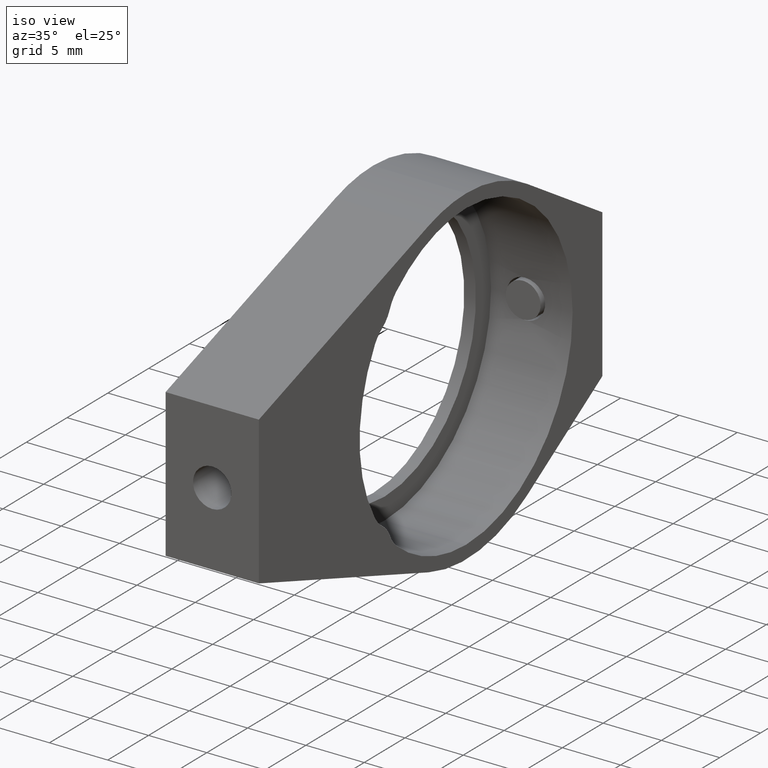
[diagram: clean part render]
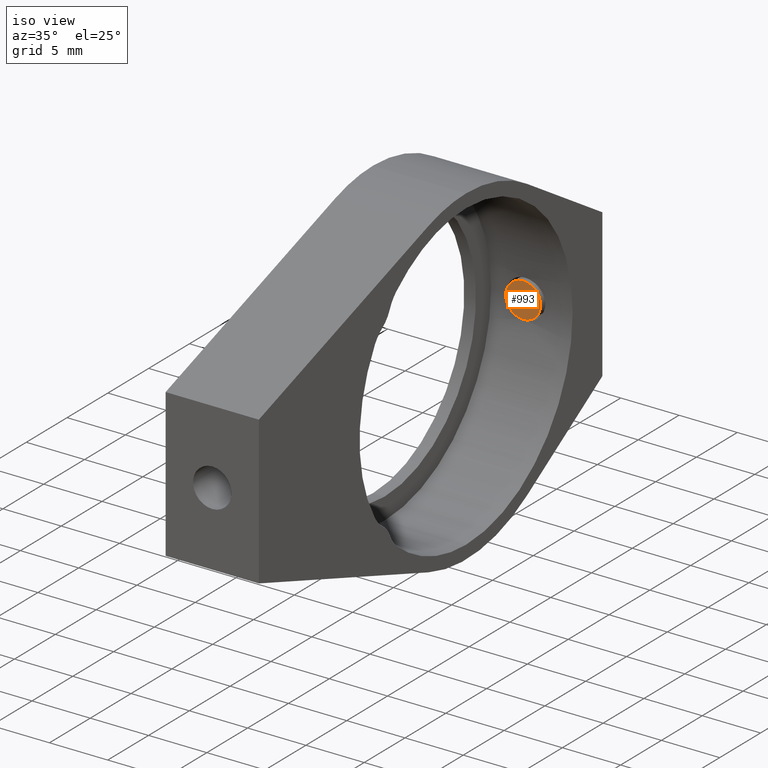
[diagram: same view with one face highlighted and labeled with its STEP entity id]
A machine part, iso view. The second image highlights one B-rep face of the part: STEP entity #993.
In plain terms, the highlighted planar face has unit normal (0, -1, 0).
Its self-contained STEP definition (entity closure, byte-faithful):
#2 = ORIENTED_EDGE ( 'NONE', *, *, #1163, .T. ) ;
#123 = FACE_OUTER_BOUND ( 'NONE', #974, .T. ) ;
#169 = VERTEX_POINT ( 'NONE', #1238 ) ;
#252 = DIRECTION ( 'NONE',  ( 0.0000000000000000000, -0.0000000000000000000, -1.000000000000000000 ) ) ;
#316 = DIRECTION ( 'NONE',  ( 0.0000000000000000000, -1.000000000000000000, 0.0000000000000000000 ) ) ;
#322 = CARTESIAN_POINT ( 'NONE',  ( -11.54903037869330085, 18.11520183104482129, 42.10000000000000142 ) ) ;
#346 = CIRCLE ( 'NONE', #1138, 1.500000000000001332 ) ;
#363 = CARTESIAN_POINT ( 'NONE',  ( -11.54903037869330085, 18.11520183104482129, 42.10000000000000142 ) ) ;
#382 = CARTESIAN_POINT ( 'NONE',  ( -11.54903037869330085, 18.11520183104482129, 42.10000000000000142 ) ) ;
#447 = CARTESIAN_POINT ( 'NONE',  ( -11.54903037869330085, 18.11520183104482129, 40.59999999999999432 ) ) ;
#493 = CIRCLE ( 'NONE', #568, 1.500000000000001332 ) ;
#568 = AXIS2_PLACEMENT_3D ( 'NONE', #322, #316, #1366 ) ;
#627 = EDGE_CURVE ( 'NONE', #1234, #169, #346, .T. ) ;
#726 = DIRECTION ( 'NONE',  ( 0.0000000000000000000, 0.0000000000000000000, -1.000000000000000000 ) ) ;
#959 = DIRECTION ( 'NONE',  ( 0.0000000000000000000, -1.000000000000000000, 0.0000000000000000000 ) ) ;
#974 = EDGE_LOOP ( 'NONE', ( #2, #1282 ) ) ;
#993 = ADVANCED_FACE ( 'NONE', ( #123 ), #1404, .T. ) ;
#1138 = AXIS2_PLACEMENT_3D ( 'NONE', #382, #1300, #726 ) ;
#1163 = EDGE_CURVE ( 'NONE', #169, #1234, #493, .T. ) ;
#1234 = VERTEX_POINT ( 'NONE', #447 ) ;
#1238 = CARTESIAN_POINT ( 'NONE',  ( -11.54903037869330085, 18.11520183104482129, 43.60000000000000142 ) ) ;
#1282 = ORIENTED_EDGE ( 'NONE', *, *, #627, .T. ) ;
#1300 = DIRECTION ( 'NONE',  ( 0.0000000000000000000, -1.000000000000000000, 0.0000000000000000000 ) ) ;
#1366 = DIRECTION ( 'NONE',  ( 0.0000000000000000000, 0.0000000000000000000, -1.000000000000000000 ) ) ;
#1403 = AXIS2_PLACEMENT_3D ( 'NONE', #363, #959, #252 ) ;
#1404 = PLANE ( 'NONE',  #1403 ) ;